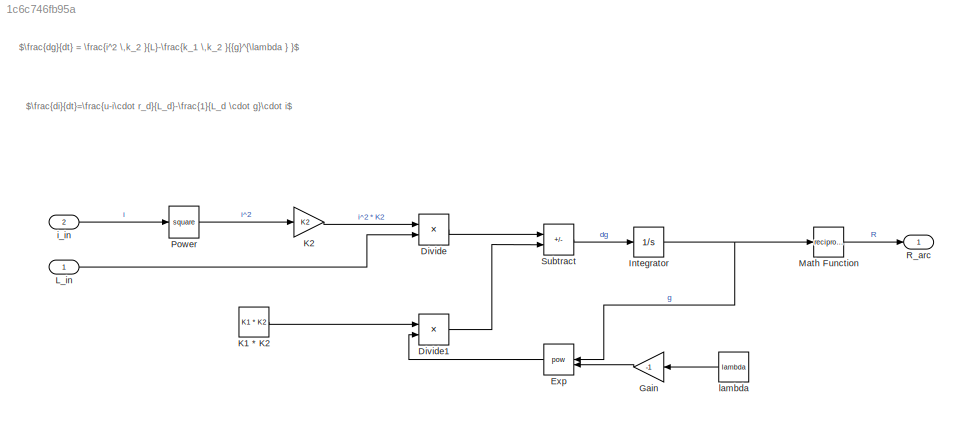
MODEL slx_1c6c746fb95a
KIND model
CONFIG AbsTol = auto
CONFIG EnableMultiTasking = off
CONFIG FixedStep = auto
CONFIG MaxStep = auto
CONFIG MinStep = auto
CONFIG RelTol = 1e-3
CONFIG SampleTimeConstraint = Unconstrained
CONFIG SolverName = FixedStepAuto
CONFIG StartTime = 0.0
CONFIG StopTime = 0.1
WORKSPACE source: mxarray member
WORKSPACE K1 = 221320
WORKSPACE K2 = 0.00072
WORKSPACE U_PhaseRMS = 243
WORKSPACE Xd = 0.003
WORKSPACE lambda = 2
WORKSPACE rd = 0.0004
BLOCK [Product] Divide
  Inputs = */
BLOCK [Product] Divide1
  Inputs = */
BLOCK [Math] Exp
  Operator = pow
BLOCK [Gain] Gain
  Gain = -1
BLOCK [Integrator] Integrator
  InitialCondition = 50
  LimitOutput = on
  LowerSaturationLimit = 1
  UpperSaturationLimit = 1e4
BLOCK [Constant] K1 * K2
  NameLocation = left
  Value = K1 * K2
BLOCK [Gain] K2
  Gain = K2
  NameLocation = top
BLOCK [Inport] L_in
BLOCK [Math] Math Function
  NameLocation = top
  Operator = reciprocal
BLOCK [Math] Power
  Operator = square
BLOCK [Outport] R_arc
BLOCK [Sum] Subtract
  IconShape = rectangular
  Inputs = +-
BLOCK [Inport] i_in
  Port = 2
BLOCK [Constant] lambda
  Value = lambda
ANNOTATION (root): $\frac{dg}{dt} = \frac{i^2 \,k_2 }{L}-\frac{k_1 \,k_2 }{{g}^{\lambda } }$
ANNOTATION (root): $\frac{di}{dt}=\frac{u-i\cdot r_d}{L_d}-\frac{1}{L_d \cdot g}\cdot i$
LINE Divide1:1 -> Subtract:2
LINE Divide:1 -> Subtract:1
LINE Exp:1 -> Divide1:2
LINE Gain:1 -> Exp:2
NET Integrator:1 -> Exp:1, Math Function:1
LINE K1 * K2:1 -> Divide1:1
LINE K2:1 -> Divide:1
LINE L_in:1 -> Divide:2
LINE Math Function:1 -> R_arc:1
LINE Power:1 -> K2:1
LINE Subtract:1 -> Integrator:1
LINE i_in:1 -> Power:1
LINE lambda:1 -> Gain:1
note: NET lines group one-source signal fan-out (src -> all destinations, sorted); 1:1 wires keep LINE
